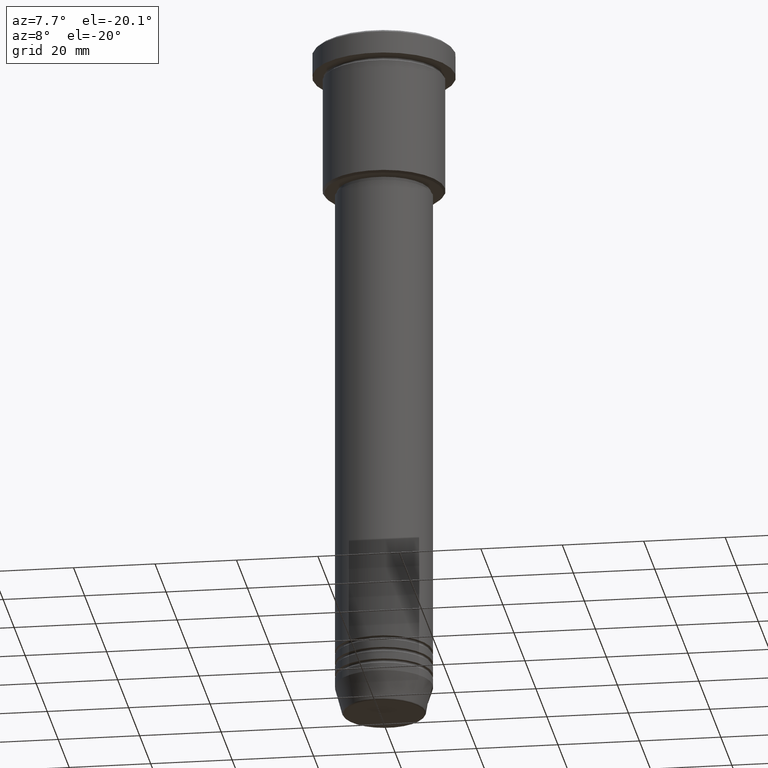
[diagram: clean part render]
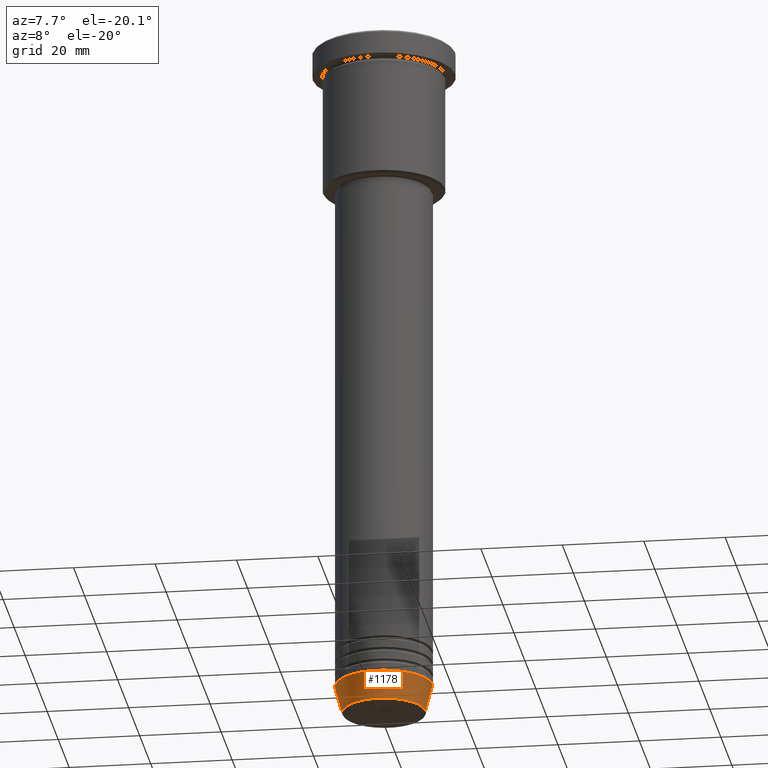
[diagram: same view with one face highlighted and labeled with its STEP entity id]
A machine part, auxiliary view. The second image highlights one B-rep face of the part: STEP entity #1178.
In plain terms, the highlighted conical surface has half-angle 15 deg.
Its self-contained STEP definition (entity closure, byte-faithful):
#9 = CARTESIAN_POINT ( 'NONE',  ( 0.000000000000000000, 0.000000000000000000, -170.6294095225512706 ) ) ;
#36 = ORIENTED_EDGE ( 'NONE', *, *, #977, .T. ) ;
#40 = AXIS2_PLACEMENT_3D ( 'NONE', #327, #318, #1077 ) ;
#41 = CIRCLE ( 'NONE', #166, 10.22365507213719660 ) ;
#45 = AXIS2_PLACEMENT_3D ( 'NONE', #345, #1162, #347 ) ;
#58 = CARTESIAN_POINT ( 'NONE',  ( -12.00000000000000000, 1.469576158976823947E-15, -164.0000000000000000 ) ) ;
#67 = VERTEX_POINT ( 'NONE', #558 ) ;
#72 = EDGE_CURVE ( 'NONE', #1039, #448, #41, .T. ) ;
#103 = CARTESIAN_POINT ( 'NONE',  ( 12.00000000000000000, 0.000000000000000000, -164.0000000000000000 ) ) ;
#118 = DIRECTION ( 'NONE',  ( -0.2588190451025213501, 3.169619151431772337E-17, 0.9659258262890680902 ) ) ;
#165 = CONICAL_SURFACE ( 'NONE', #40, 12.00000000000000000, 0.2617993877991500740 ) ;
#166 = AXIS2_PLACEMENT_3D ( 'NONE', #9, #1106, #1005 ) ;
#167 = ORIENTED_EDGE ( 'NONE', *, *, #228, .F. ) ;
#228 = EDGE_CURVE ( 'NONE', #1039, #310, #398, .T. ) ;
#279 = ORIENTED_EDGE ( 'NONE', *, *, #800, .F. ) ;
#310 = VERTEX_POINT ( 'NONE', #58 ) ;
#318 = DIRECTION ( 'NONE',  ( -0.000000000000000000, -0.000000000000000000, 1.000000000000000000 ) ) ;
#327 = CARTESIAN_POINT ( 'NONE',  ( 0.000000000000000000, 0.000000000000000000, -164.0000000000000000 ) ) ;
#345 = CARTESIAN_POINT ( 'NONE',  ( 0.000000000000000000, 0.000000000000000000, -164.0000000000000000 ) ) ;
#347 = DIRECTION ( 'NONE',  ( 1.000000000000000000, 0.000000000000000000, 0.000000000000000000 ) ) ;
#398 = LINE ( 'NONE', #1054, #625 ) ;
#448 = VERTEX_POINT ( 'NONE', #1100 ) ;
#558 = CARTESIAN_POINT ( 'NONE',  ( 12.00000000000000000, 0.000000000000000000, -164.0000000000000000 ) ) ;
#625 = VECTOR ( 'NONE', #118, 1000.000000000000000 ) ;
#628 = CIRCLE ( 'NONE', #45, 12.00000000000000000 ) ;
#726 = LINE ( 'NONE', #103, #764 ) ;
#764 = VECTOR ( 'NONE', #1098, 1000.000000000000000 ) ;
#770 = CARTESIAN_POINT ( 'NONE',  ( -10.22365507213719837, 1.360806402472383336E-15, -170.6294095225512706 ) ) ;
#800 = EDGE_CURVE ( 'NONE', #310, #67, #628, .T. ) ;
#889 = EDGE_LOOP ( 'NONE', ( #167, #1049, #36, #279 ) ) ;
#977 = EDGE_CURVE ( 'NONE', #448, #67, #726, .T. ) ;
#1005 = DIRECTION ( 'NONE',  ( 1.000000000000000000, 0.000000000000000000, 0.000000000000000000 ) ) ;
#1039 = VERTEX_POINT ( 'NONE', #770 ) ;
#1049 = ORIENTED_EDGE ( 'NONE', *, *, #72, .T. ) ;
#1052 = FACE_OUTER_BOUND ( 'NONE', #889, .T. ) ;
#1054 = CARTESIAN_POINT ( 'NONE',  ( -12.00000000000000000, 1.469576158976823947E-15, -164.0000000000000000 ) ) ;
#1077 = DIRECTION ( 'NONE',  ( 1.000000000000000000, 0.000000000000000000, 0.000000000000000000 ) ) ;
#1098 = DIRECTION ( 'NONE',  ( 0.2588190451025213501, 0.000000000000000000, 0.9659258262890680902 ) ) ;
#1100 = CARTESIAN_POINT ( 'NONE',  ( 10.22365507213719660, 0.000000000000000000, -170.6294095225512706 ) ) ;
#1106 = DIRECTION ( 'NONE',  ( -0.000000000000000000, -0.000000000000000000, 1.000000000000000000 ) ) ;
#1162 = DIRECTION ( 'NONE',  ( -0.000000000000000000, -0.000000000000000000, 1.000000000000000000 ) ) ;
#1178 = ADVANCED_FACE ( 'NONE', ( #1052 ), #165, .T. ) ;